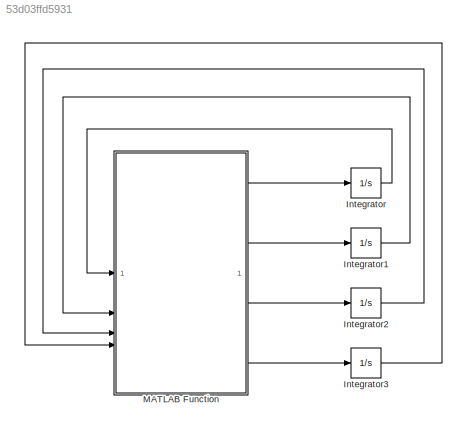
MODEL slx_53d03ffd5931
KIND model
CONFIG AbsTol = auto
CONFIG EnableMultiTasking = off
CONFIG FixedStep = auto
CONFIG MaxStep = auto
CONFIG MinStep = auto
CONFIG RelTol = 1e-3
CONFIG SampleTimeConstraint = Unconstrained
CONFIG SolverName = VariableStepAuto
CONFIG StartTime = 0.0
CONFIG StopTime = 10.0
BLOCK [Integrator] Integrator
BLOCK [Integrator] Integrator1
BLOCK [Integrator] Integrator2
  InitialCondition = 2
BLOCK [Integrator] Integrator3
  InitialCondition = 0.5
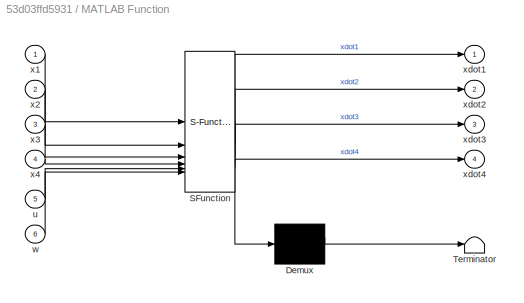
BLOCK [SubSystem] MATLAB Function
  ErrorFcn = Stateflow.Translate.translate
  PermitHierarchicalResolution = ExplicitOnly
  SFBlockType = MATLAB Function
  TreatAsAtomicUnit = on
BLOCK [Demux] MATLAB Function/ Demux 
  Outputs = 1
BLOCK [S-Function] MATLAB Function/ SFunction 
  EnableBusSupport = off
  FunctionName = sf_sfun
  PortCounts = [6 5]
  SFcnIsStateOwnerBlock = off
  SFunctionDeploymentMode = off
  Tag = Stateflow S-Function 2
BLOCK [Terminator] MATLAB Function/ Terminator 
BLOCK [Inport] MATLAB Function/u
  Port = 5
BLOCK [Inport] MATLAB Function/w
  Port = 6
BLOCK [Inport] MATLAB Function/x1
BLOCK [Inport] MATLAB Function/x2
  Port = 2
BLOCK [Inport] MATLAB Function/x3
  Port = 3
BLOCK [Inport] MATLAB Function/x4
  Port = 4
BLOCK [Outport] MATLAB Function/xdot1
BLOCK [Outport] MATLAB Function/xdot2
  Port = 2
BLOCK [Outport] MATLAB Function/xdot3
  Port = 3
BLOCK [Outport] MATLAB Function/xdot4
  Port = 4
LINE Integrator1:1 -> MATLAB Function:2
LINE Integrator2:1 -> MATLAB Function:3
LINE Integrator3:1 -> MATLAB Function:4
LINE Integrator:1 -> MATLAB Function:1
LINE MATLAB Function:1 -> Integrator:1
LINE MATLAB Function:2 -> Integrator1:1
LINE MATLAB Function:3 -> Integrator2:1
LINE MATLAB Function:4 -> Integrator3:1
CHART MATLAB Function states=1 transitions=1
  STATE_LABEL 'eML_blk_kernel()'
  STATE_LABEL 'SCRIPT:\nfunction [xdot1, xdot2, xdot3, xdot4] = fcn(x1, x2, x3, x4, u, w)\n\n% Parameter Values\n\nm1 = 10000;\nm2 = 8000;\nk = 500000;\nc = 5000;\n\n% State-Equations\n\nxdot1 = x3;\nxdot2 = x4;\nxdot3 = (1 / m1) / (k * (-x1 + x2) + c * (-x3 + x4) + u + w);\nxdot4 = (1 / m2) / (k * (x1 - x2) + c * (x3 - x4));'
CHART  states=0 transitions=0
